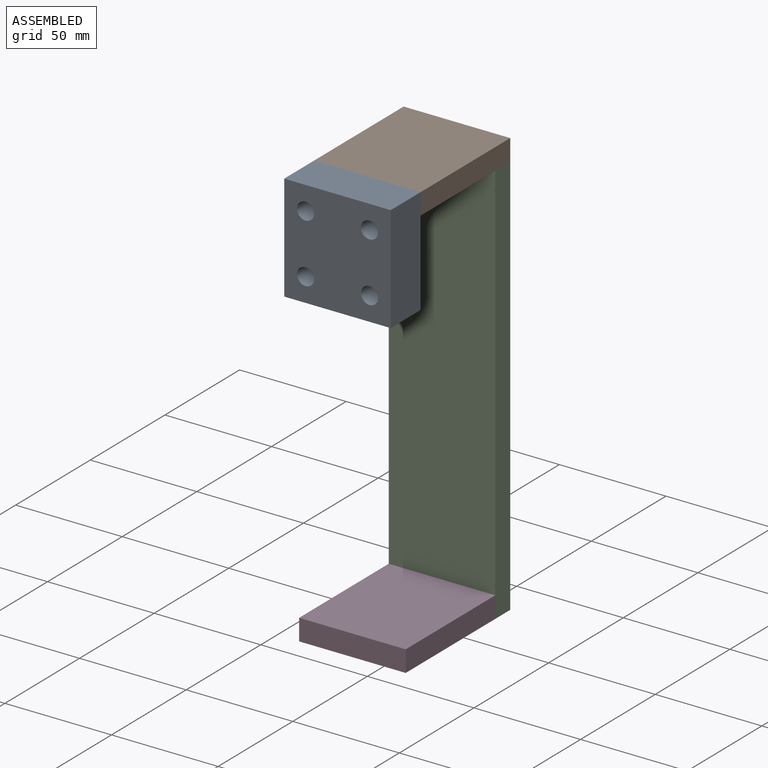
[diagram: assembled view]
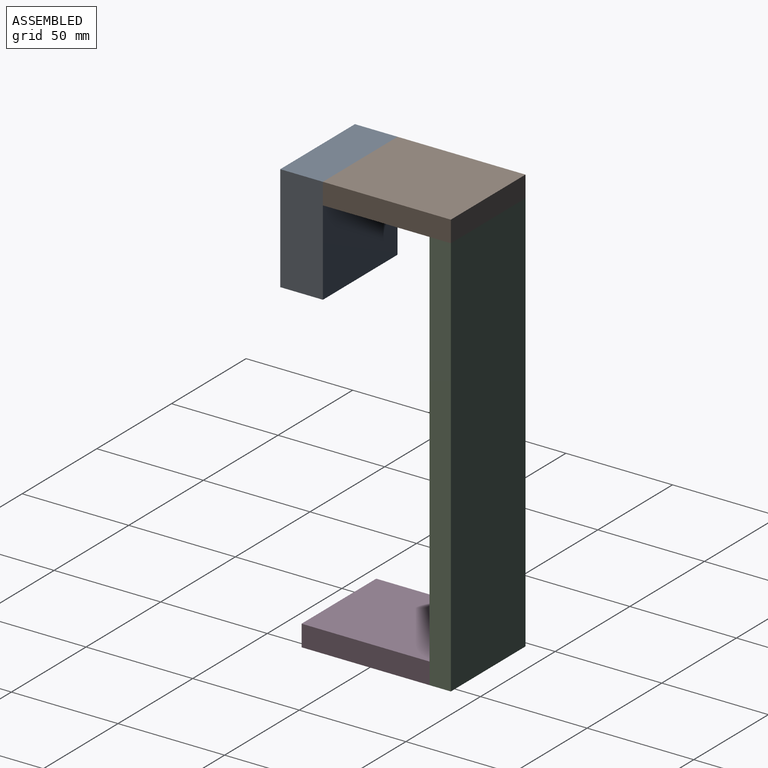
[diagram: assembled view, second angle]
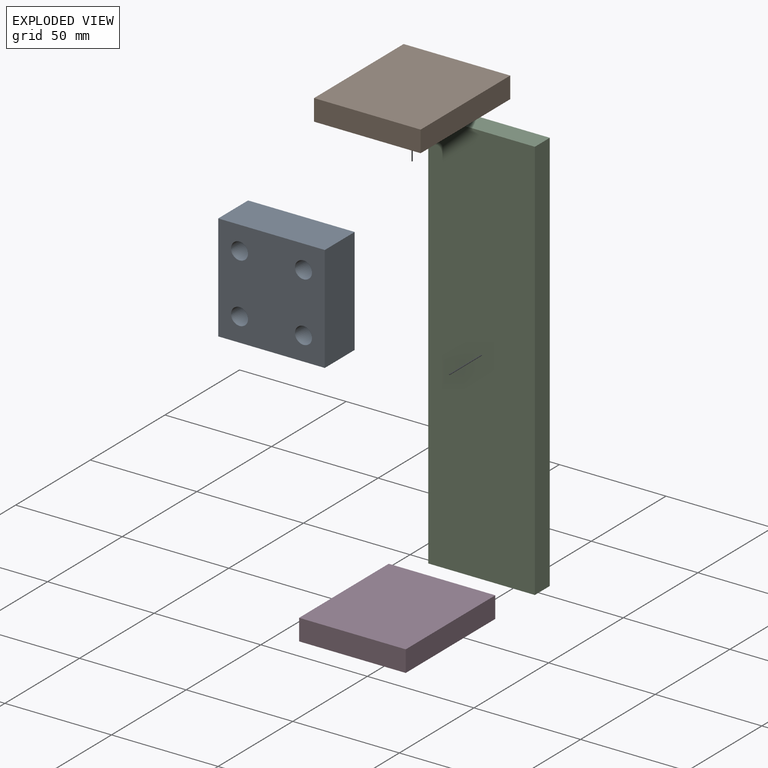
[diagram: exploded view]
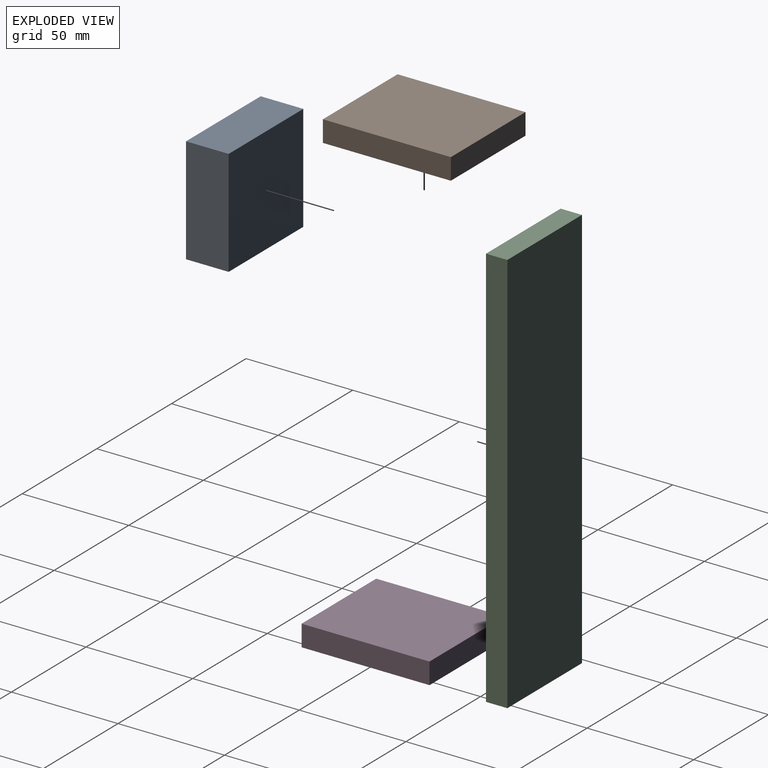
[diagram: exploded view, second angle]
ASSEMBLY  parts=4 mates=3
PART A: 14 faces, bbox 50x20x50 mm
  f0: plane 50x50mm, normal (0,-1,0), area 2298.9mm2, adj f1,f2,f3,f4,f6,f8,f10,f12
  f1: plane 50x20mm, normal (0,0,-1), area 1000mm2, adj f0,f2,f4,f5
  f2: plane 50x20mm, normal (1,0,0), area 1000mm2, adj f0,f1,f3,f5
  f3: plane 50x20mm, normal (0,0,1), area 1000mm2, adj f0,f2,f4,f5
  f4: plane 50x20mm, normal (-1,0,0), area 1000mm2, adj f0,f1,f3,f5
  f5: plane 50x50mm, normal (0,1,0), area 2500mm2, adj f1,f2,f3,f4
  f6: cylinder r=4mm len=15mm, axis (0,-1,0), area 377mm2, adj f0,f7
  f7: plane 8x8mm, normal (0,-1,0), area 50.3mm2, adj f6
  f8: cylinder r=4mm len=15mm, axis (0,-1,0), area 377mm2, adj f0,f9
  f9: plane 8x8mm, normal (0,-1,0), area 50.3mm2, adj f8
  f10: cylinder r=4mm len=15mm, axis (0,-1,0), area 377mm2, adj f0,f11
  f11: plane 8x8mm, normal (0,-1,0), area 50.3mm2, adj f10
  f12: cylinder r=4mm len=15mm, axis (0,-1,0), area 377mm2, adj f0,f13
  f13: plane 8x8mm, normal (0,-1,0), area 50.3mm2, adj f12
PART B: 6 faces, bbox 50x60x10 mm
  f0: plane 60x10mm, normal (1,0,0), area 600mm2, adj f1,f3,f4,f5
  f1: plane 50x10mm, normal (0,1,0), area 500mm2, adj f0,f2,f4,f5
  f2: plane 60x10mm, normal (-1,0,0), area 600mm2, adj f1,f3,f4,f5
  f3: plane 50x10mm, normal (0,-1,0), area 500mm2, adj f0,f2,f4,f5
  f4: plane 60x50mm, normal (0,0,1), area 3000mm2, adj f0,f1,f2,f3
  f5: plane 60x50mm, normal (0,0,-1), area 3000mm2, adj f0,f1,f2,f3
PART C: 6 faces, bbox 50x10x190 mm
  f0: plane 190x50mm, normal (0,-1,0), area 9500mm2, adj f1,f3,f4,f5
  f1: plane 190x10mm, normal (1,0,0), area 1900mm2, adj f0,f2,f4,f5
  f2: plane 190x50mm, normal (0,1,0), area 9500mm2, adj f1,f3,f4,f5
  f3: plane 190x10mm, normal (-1,0,0), area 1900mm2, adj f0,f2,f4,f5
  f4: plane 50x10mm, normal (0,0,1), area 500mm2, adj f0,f1,f2,f3
  f5: plane 50x10mm, normal (0,0,-1), area 500mm2, adj f0,f1,f2,f3
PART D: same geometry as B
PLACE A t=(3.01,-4.29,153.46)mm
PLACE B t=(3.01,25.71,168.46)mm
PLACE C t=(3.01,50.71,-21.54)mm
PLACE D t=(3.01,15.71,-21.54)mm
MATE fastened B.f5 <-> C.f4  axis (0,0,-1) through (3.01,55.71,168.46)mm
MATE fastened D.f1 <-> C.f0  axis (0,1,0) through (3.01,45.71,-21.54)mm
MATE fastened A.f5 <-> B.f3  axis (0,1,0) through (3.01,-4.29,178.46)mm
